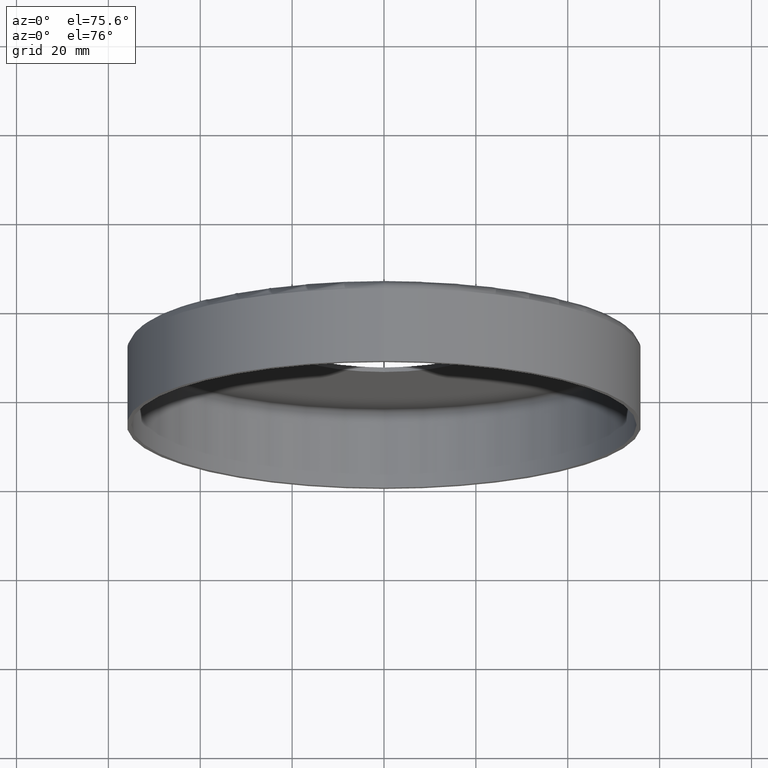
[diagram: clean part render]
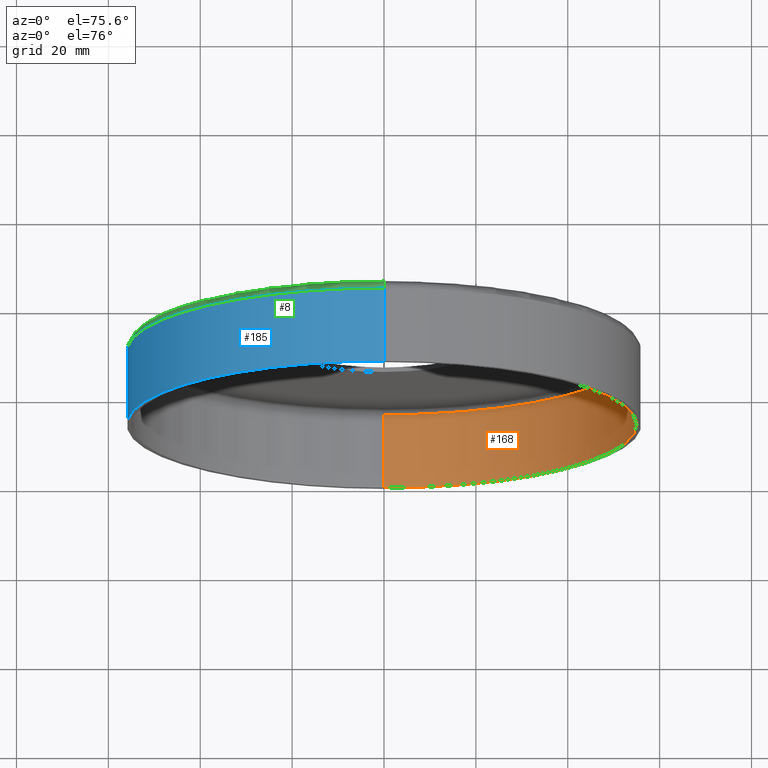
[diagram: same view with three faces highlighted in distinct colors, each labeled with its STEP entity id]
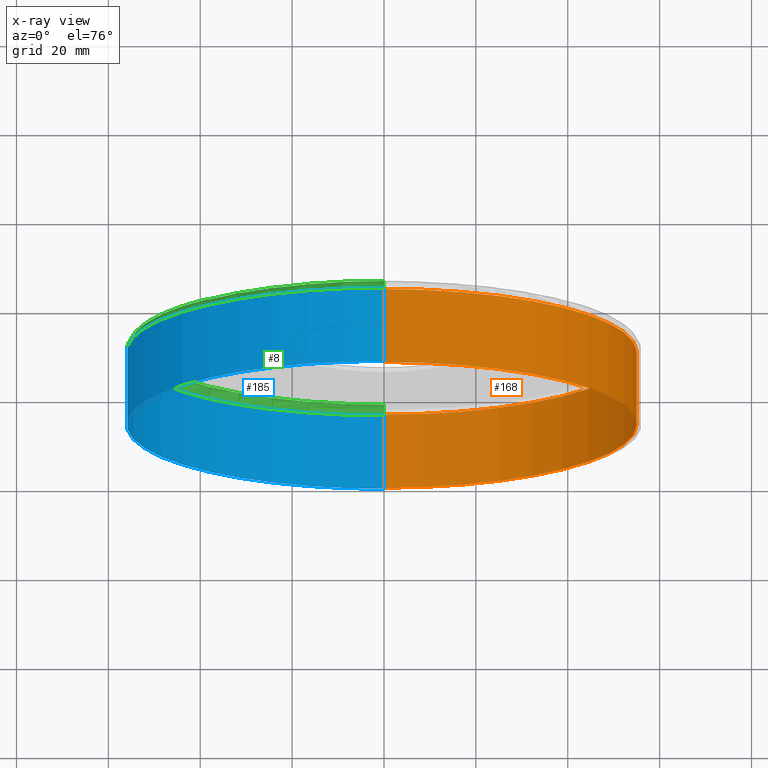
[diagram: x-ray of the same camera — body ghosted, the three highlighted faces saturated]
A machine part, auxiliary view with three faces highlighted in distinct colors.
The next image is the same camera in x-ray (body ghosted, the three faces saturated) — at least one of them is partly hidden behind the body in this view.
Their STEP definitions:

[orange] entity #168 — the highlighted cylindrical surface (partial cylindrical patch) has radius 55 mm, axis along (-0, -1, -0).
#13 = VERTEX_POINT ( 'NONE', #335 ) ;
#27 = VERTEX_POINT ( 'NONE', #367 ) ;
#33 = AXIS2_PLACEMENT_3D ( 'NONE', #288, #290, #355 ) ;
#59 = CYLINDRICAL_SURFACE ( 'NONE', #117, 55.00000000000000700 ) ;
#67 = EDGE_CURVE ( 'NONE', #27, #245, #247, .T. ) ;
#74 = CARTESIAN_POINT ( 'NONE',  ( 6.735557395310444200E-015, 0.0000000000000000000, 55.00000000000000700 ) ) ;
#99 = EDGE_LOOP ( 'NONE', ( #371, #351, #268, #326 ) ) ;
#107 = VECTOR ( 'NONE', #188, 1000.000000000000000 ) ;
#108 = CIRCLE ( 'NONE', #192, 55.00000000000000700 ) ;
#117 = AXIS2_PLACEMENT_3D ( 'NONE', #257, #258, #227 ) ;
#139 = CARTESIAN_POINT ( 'NONE',  ( 6.735557395310444200E-015, 18.39999999999999900, 55.00000000000000700 ) ) ;
#165 = DIRECTION ( 'NONE',  ( -0.0000000000000000000, -1.000000000000000000, -0.0000000000000000000 ) ) ;
#168 = ADVANCED_FACE ( 'NONE', ( #338 ), #59, .F. ) ;
#170 = CARTESIAN_POINT ( 'NONE',  ( 0.0000000000000000000, 0.0000000000000000000, 0.0000000000000000000 ) ) ;
#179 = VECTOR ( 'NONE', #165, 1000.000000000000000 ) ;
#188 = DIRECTION ( 'NONE',  ( -0.0000000000000000000, -1.000000000000000000, -0.0000000000000000000 ) ) ;
#192 = AXIS2_PLACEMENT_3D ( 'NONE', #170, #390, #197 ) ;
#197 = DIRECTION ( 'NONE',  ( 0.0000000000000000000, 0.0000000000000000000, 1.000000000000000000 ) ) ;
#216 = EDGE_CURVE ( 'NONE', #27, #13, #235, .T. ) ;
#227 = DIRECTION ( 'NONE',  ( 0.0000000000000000000, 0.0000000000000000000, -1.000000000000000000 ) ) ;
#235 = CIRCLE ( 'NONE', #33, 55.00000000000000700 ) ;
#241 = VERTEX_POINT ( 'NONE', #74 ) ;
#242 = EDGE_CURVE ( 'NONE', #13, #241, #311, .T. ) ;
#245 = VERTEX_POINT ( 'NONE', #348 ) ;
#247 = LINE ( 'NONE', #315, #107 ) ;
#257 = CARTESIAN_POINT ( 'NONE',  ( 0.0000000000000000000, 18.39999999999999900, 0.0000000000000000000 ) ) ;
#258 = DIRECTION ( 'NONE',  ( -0.0000000000000000000, -1.000000000000000000, -0.0000000000000000000 ) ) ;
#268 = ORIENTED_EDGE ( 'NONE', *, *, #67, .T. ) ;
#288 = CARTESIAN_POINT ( 'NONE',  ( 0.0000000000000000000, 16.39999999999999900, 0.0000000000000000000 ) ) ;
#290 = DIRECTION ( 'NONE',  ( -0.0000000000000000000, -1.000000000000000000, -0.0000000000000000000 ) ) ;
#311 = LINE ( 'NONE', #139, #179 ) ;
#315 = CARTESIAN_POINT ( 'NONE',  ( 0.0000000000000000000, 18.39999999999999900, -55.00000000000000700 ) ) ;
#326 = ORIENTED_EDGE ( 'NONE', *, *, #369, .F. ) ;
#335 = CARTESIAN_POINT ( 'NONE',  ( 6.735557395310444200E-015, 16.39999999999999900, 55.00000000000000700 ) ) ;
#338 = FACE_OUTER_BOUND ( 'NONE', #99, .T. ) ;
#348 = CARTESIAN_POINT ( 'NONE',  ( 0.0000000000000000000, 0.0000000000000000000, -55.00000000000000700 ) ) ;
#351 = ORIENTED_EDGE ( 'NONE', *, *, #216, .F. ) ;
#355 = DIRECTION ( 'NONE',  ( 0.0000000000000000000, 0.0000000000000000000, -1.000000000000000000 ) ) ;
#367 = CARTESIAN_POINT ( 'NONE',  ( 0.0000000000000000000, 16.39999999999999900, -55.00000000000000700 ) ) ;
#369 = EDGE_CURVE ( 'NONE', #241, #245, #108, .T. ) ;
#371 = ORIENTED_EDGE ( 'NONE', *, *, #242, .F. ) ;
#390 = DIRECTION ( 'NONE',  ( 0.0000000000000000000, 1.000000000000000000, 0.0000000000000000000 ) ) ;

[blue] entity #185 — the highlighted cylindrical surface (partial cylindrical patch) has radius 56 mm, axis along (-0, -1, -0).
#20 = ORIENTED_EDGE ( 'NONE', *, *, #391, .T. ) ;
#21 = AXIS2_PLACEMENT_3D ( 'NONE', #319, #78, #318 ) ;
#26 = CARTESIAN_POINT ( 'NONE',  ( 0.0000000000000000000, 16.39999999999999900, -56.00000000000000700 ) ) ;
#38 = LINE ( 'NONE', #77, #153 ) ;
#42 = CARTESIAN_POINT ( 'NONE',  ( 6.858022075225179300E-015, 16.39999999999999900, 56.00000000000000700 ) ) ;
#47 = CARTESIAN_POINT ( 'NONE',  ( 6.858022075225179300E-015, 0.0000000000000000000, 56.00000000000000700 ) ) ;
#60 = DIRECTION ( 'NONE',  ( -0.0000000000000000000, -1.000000000000000000, -0.0000000000000000000 ) ) ;
#66 = LINE ( 'NONE', #272, #387 ) ;
#77 = CARTESIAN_POINT ( 'NONE',  ( 6.858022075225179300E-015, 18.39999999999999900, 56.00000000000000700 ) ) ;
#78 = DIRECTION ( 'NONE',  ( -0.0000000000000000000, -1.000000000000000000, -0.0000000000000000000 ) ) ;
#79 = EDGE_CURVE ( 'NONE', #251, #177, #169, .T. ) ;
#91 = VERTEX_POINT ( 'NONE', #42 ) ;
#104 = CARTESIAN_POINT ( 'NONE',  ( 0.0000000000000000000, 16.39999999999999900, 0.0000000000000000000 ) ) ;
#116 = CYLINDRICAL_SURFACE ( 'NONE', #21, 56.00000000000000700 ) ;
#146 = EDGE_LOOP ( 'NONE', ( #372, #280, #20, #304 ) ) ;
#153 = VECTOR ( 'NONE', #167, 1000.000000000000000 ) ;
#156 = EDGE_CURVE ( 'NONE', #91, #322, #275, .T. ) ;
#161 = CARTESIAN_POINT ( 'NONE',  ( 0.0000000000000000000, 0.0000000000000000000, 0.0000000000000000000 ) ) ;
#167 = DIRECTION ( 'NONE',  ( -0.0000000000000000000, -1.000000000000000000, -0.0000000000000000000 ) ) ;
#169 = CIRCLE ( 'NONE', #180, 56.00000000000000700 ) ;
#177 = VERTEX_POINT ( 'NONE', #47 ) ;
#180 = AXIS2_PLACEMENT_3D ( 'NONE', #161, #313, #339 ) ;
#185 = ADVANCED_FACE ( 'NONE', ( #373 ), #116, .T. ) ;
#251 = VERTEX_POINT ( 'NONE', #350 ) ;
#272 = CARTESIAN_POINT ( 'NONE',  ( 0.0000000000000000000, 18.39999999999999900, -56.00000000000000700 ) ) ;
#275 = CIRCLE ( 'NONE', #385, 56.00000000000000700 ) ;
#276 = EDGE_CURVE ( 'NONE', #91, #177, #38, .T. ) ;
#280 = ORIENTED_EDGE ( 'NONE', *, *, #156, .T. ) ;
#304 = ORIENTED_EDGE ( 'NONE', *, *, #79, .T. ) ;
#313 = DIRECTION ( 'NONE',  ( 0.0000000000000000000, 1.000000000000000000, 0.0000000000000000000 ) ) ;
#318 = DIRECTION ( 'NONE',  ( 0.0000000000000000000, 0.0000000000000000000, -1.000000000000000000 ) ) ;
#319 = CARTESIAN_POINT ( 'NONE',  ( 0.0000000000000000000, 18.39999999999999900, 0.0000000000000000000 ) ) ;
#322 = VERTEX_POINT ( 'NONE', #26 ) ;
#339 = DIRECTION ( 'NONE',  ( 0.0000000000000000000, 0.0000000000000000000, 1.000000000000000000 ) ) ;
#341 = DIRECTION ( 'NONE',  ( -0.0000000000000000000, -1.000000000000000000, -0.0000000000000000000 ) ) ;
#350 = CARTESIAN_POINT ( 'NONE',  ( 0.0000000000000000000, 0.0000000000000000000, -56.00000000000000700 ) ) ;
#372 = ORIENTED_EDGE ( 'NONE', *, *, #276, .F. ) ;
#373 = FACE_OUTER_BOUND ( 'NONE', #146, .T. ) ;
#377 = DIRECTION ( 'NONE',  ( 0.0000000000000000000, 0.0000000000000000000, 1.000000000000000000 ) ) ;
#385 = AXIS2_PLACEMENT_3D ( 'NONE', #104, #341, #377 ) ;
#387 = VECTOR ( 'NONE', #60, 1000.000000000000000 ) ;
#391 = EDGE_CURVE ( 'NONE', #322, #251, #66, .T. ) ;

[green] entity #8 — the highlighted toroidal blend (fillet) surface has major radius 54 mm and minor (blend) radius 2 mm.
#8 = ADVANCED_FACE ( 'NONE', ( #284 ), #32, .T. ) ;
#24 = CIRCLE ( 'NONE', #127, 2.000000000000001800 ) ;
#26 = CARTESIAN_POINT ( 'NONE',  ( 0.0000000000000000000, 16.39999999999999900, -56.00000000000000700 ) ) ;
#32 = TOROIDAL_SURFACE ( 'NONE', #111, 54.00000000000000700, 2.000000000000000000 ) ;
#36 = CARTESIAN_POINT ( 'NONE',  ( 0.0000000000000000000, 16.39999999999999900, 54.00000000000000700 ) ) ;
#40 = DIRECTION ( 'NONE',  ( 0.0000000000000000000, 1.000000000000000000, 0.0000000000000000000 ) ) ;
#42 = CARTESIAN_POINT ( 'NONE',  ( 6.858022075225179300E-015, 16.39999999999999900, 56.00000000000000700 ) ) ;
#45 = ORIENTED_EDGE ( 'NONE', *, *, #156, .F. ) ;
#89 = EDGE_CURVE ( 'NONE', #178, #300, #243, .T. ) ;
#91 = VERTEX_POINT ( 'NONE', #42 ) ;
#96 = EDGE_CURVE ( 'NONE', #91, #300, #24, .T. ) ;
#102 = AXIS2_PLACEMENT_3D ( 'NONE', #295, #171, #357 ) ;
#104 = CARTESIAN_POINT ( 'NONE',  ( 0.0000000000000000000, 16.39999999999999900, 0.0000000000000000000 ) ) ;
#111 = AXIS2_PLACEMENT_3D ( 'NONE', #183, #309, #207 ) ;
#124 = ORIENTED_EDGE ( 'NONE', *, *, #89, .F. ) ;
#127 = AXIS2_PLACEMENT_3D ( 'NONE', #36, #346, #158 ) ;
#131 = DIRECTION ( 'NONE',  ( 0.0000000000000000000, 0.0000000000000000000, 1.000000000000000000 ) ) ;
#133 = CIRCLE ( 'NONE', #102, 2.000000000000001800 ) ;
#150 = ORIENTED_EDGE ( 'NONE', *, *, #96, .T. ) ;
#156 = EDGE_CURVE ( 'NONE', #91, #322, #275, .T. ) ;
#158 = DIRECTION ( 'NONE',  ( 0.0000000000000000000, 0.0000000000000000000, 1.000000000000000000 ) ) ;
#166 = AXIS2_PLACEMENT_3D ( 'NONE', #382, #40, #131 ) ;
#171 = DIRECTION ( 'NONE',  ( 1.000000000000000000, -0.0000000000000000000, 1.224646799147353200E-016 ) ) ;
#178 = VERTEX_POINT ( 'NONE', #255 ) ;
#183 = CARTESIAN_POINT ( 'NONE',  ( 0.0000000000000000000, 16.39999999999999900, 0.0000000000000000000 ) ) ;
#207 = DIRECTION ( 'NONE',  ( 0.0000000000000000000, 0.0000000000000000000, 1.000000000000000000 ) ) ;
#243 = CIRCLE ( 'NONE', #166, 54.00000000000000700 ) ;
#255 = CARTESIAN_POINT ( 'NONE',  ( 6.735557395310443400E-015, 18.39999999999999900, -54.00000000000000700 ) ) ;
#275 = CIRCLE ( 'NONE', #385, 56.00000000000000700 ) ;
#284 = FACE_OUTER_BOUND ( 'NONE', #296, .T. ) ;
#295 = CARTESIAN_POINT ( 'NONE',  ( 6.613092715395708300E-015, 16.39999999999999900, -54.00000000000000700 ) ) ;
#296 = EDGE_LOOP ( 'NONE', ( #340, #45, #150, #124 ) ) ;
#298 = EDGE_CURVE ( 'NONE', #322, #178, #133, .T. ) ;
#300 = VERTEX_POINT ( 'NONE', #330 ) ;
#309 = DIRECTION ( 'NONE',  ( 0.0000000000000000000, 1.000000000000000000, 0.0000000000000000000 ) ) ;
#322 = VERTEX_POINT ( 'NONE', #26 ) ;
#330 = CARTESIAN_POINT ( 'NONE',  ( 0.0000000000000000000, 18.39999999999999900, 54.00000000000000700 ) ) ;
#340 = ORIENTED_EDGE ( 'NONE', *, *, #298, .F. ) ;
#341 = DIRECTION ( 'NONE',  ( -0.0000000000000000000, -1.000000000000000000, -0.0000000000000000000 ) ) ;
#346 = DIRECTION ( 'NONE',  ( -1.000000000000000000, 0.0000000000000000000, 0.0000000000000000000 ) ) ;
#357 = DIRECTION ( 'NONE',  ( 1.224646799147353500E-016, 0.0000000000000000000, -1.000000000000000000 ) ) ;
#377 = DIRECTION ( 'NONE',  ( 0.0000000000000000000, 0.0000000000000000000, 1.000000000000000000 ) ) ;
#382 = CARTESIAN_POINT ( 'NONE',  ( 0.0000000000000000000, 18.39999999999999900, 0.0000000000000000000 ) ) ;
#385 = AXIS2_PLACEMENT_3D ( 'NONE', #104, #341, #377 ) ;